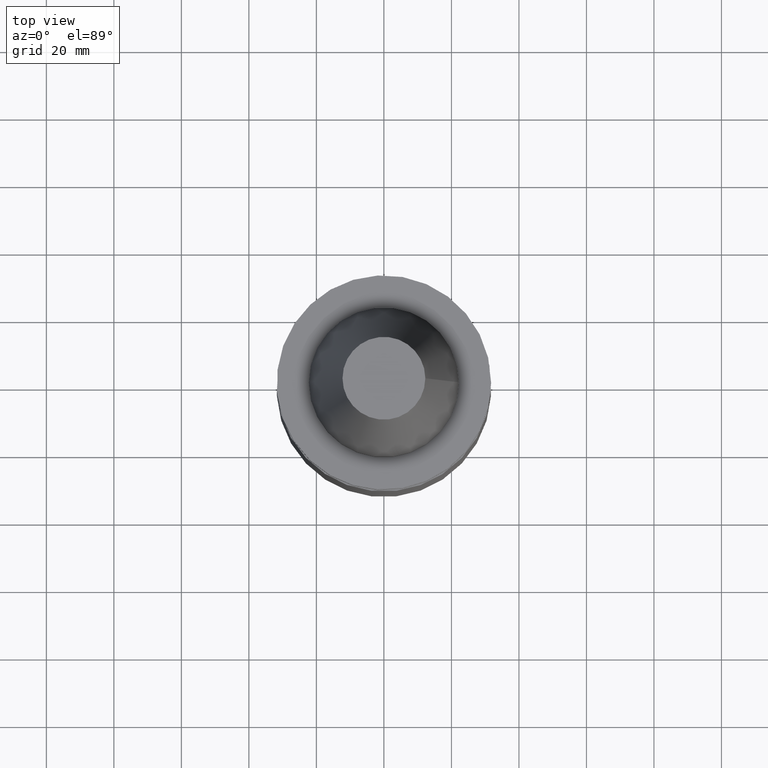
[diagram: clean part render]
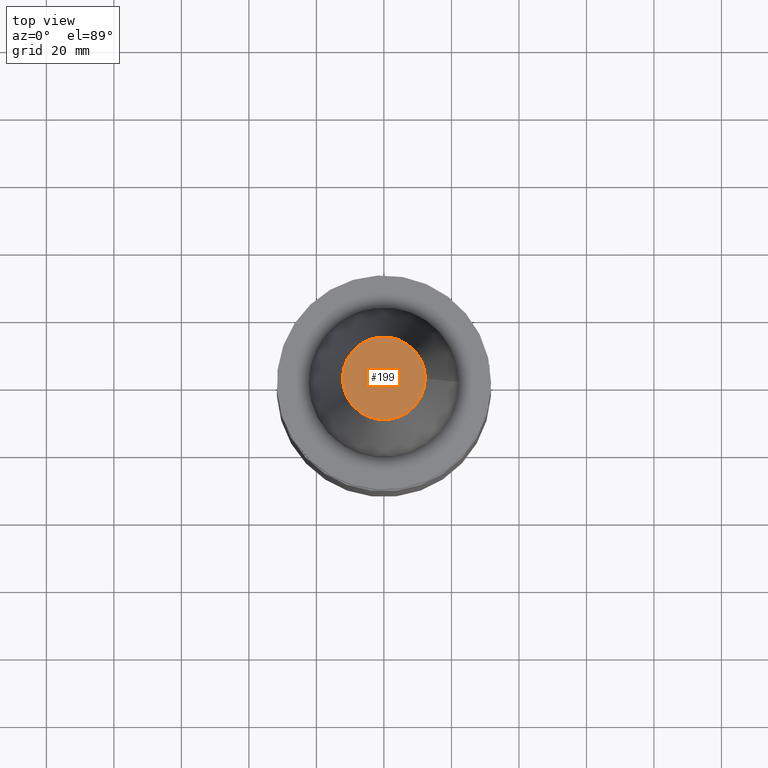
[diagram: same view with one face highlighted and labeled with its STEP entity id]
A machine part, top view. The second image highlights one B-rep face of the part: STEP entity #199.
In plain terms, the highlighted planar face has unit normal (0, 0, -1).
Its self-contained STEP definition (entity closure, byte-faithful):
#34 = DIRECTION ( 'NONE',  ( -1.000000000000000000, 0.000000000000000000, -0.000000000000000000 ) ) ;
#58 = ORIENTED_EDGE ( 'NONE', *, *, #327, .T. ) ;
#95 = FACE_OUTER_BOUND ( 'NONE', #254, .T. ) ;
#97 = CARTESIAN_POINT ( 'NONE',  ( 0.000000000000000000, 0.000000000000000000, 68.25000000000000000 ) ) ;
#99 = PLANE ( 'NONE',  #292 ) ;
#116 = CARTESIAN_POINT ( 'NONE',  ( 12.27178102086201150, 0.000000000000000000, 68.25000000000000000 ) ) ;
#199 = ADVANCED_FACE ( 'NONE', ( #95 ), #99, .F. ) ;
#221 = DIRECTION ( 'NONE',  ( -0.000000000000000000, -0.000000000000000000, 1.000000000000000000 ) ) ;
#236 = AXIS2_PLACEMENT_3D ( 'NONE', #97, #221, #317 ) ;
#241 = CARTESIAN_POINT ( 'NONE',  ( 0.000000000000000000, 12.27178102086201150, 68.25000000000000000 ) ) ;
#254 = EDGE_LOOP ( 'NONE', ( #58 ) ) ;
#270 = DIRECTION ( 'NONE',  ( 0.000000000000000000, 0.000000000000000000, -1.000000000000000000 ) ) ;
#292 = AXIS2_PLACEMENT_3D ( 'NONE', #241, #270, #34 ) ;
#317 = DIRECTION ( 'NONE',  ( 1.000000000000000000, 0.000000000000000000, 0.000000000000000000 ) ) ;
#327 = EDGE_CURVE ( 'NONE', #394, #394, #387, .T. ) ;
#387 = CIRCLE ( 'NONE', #236, 12.27178102086201150 ) ;
#394 = VERTEX_POINT ( 'NONE', #116 ) ;